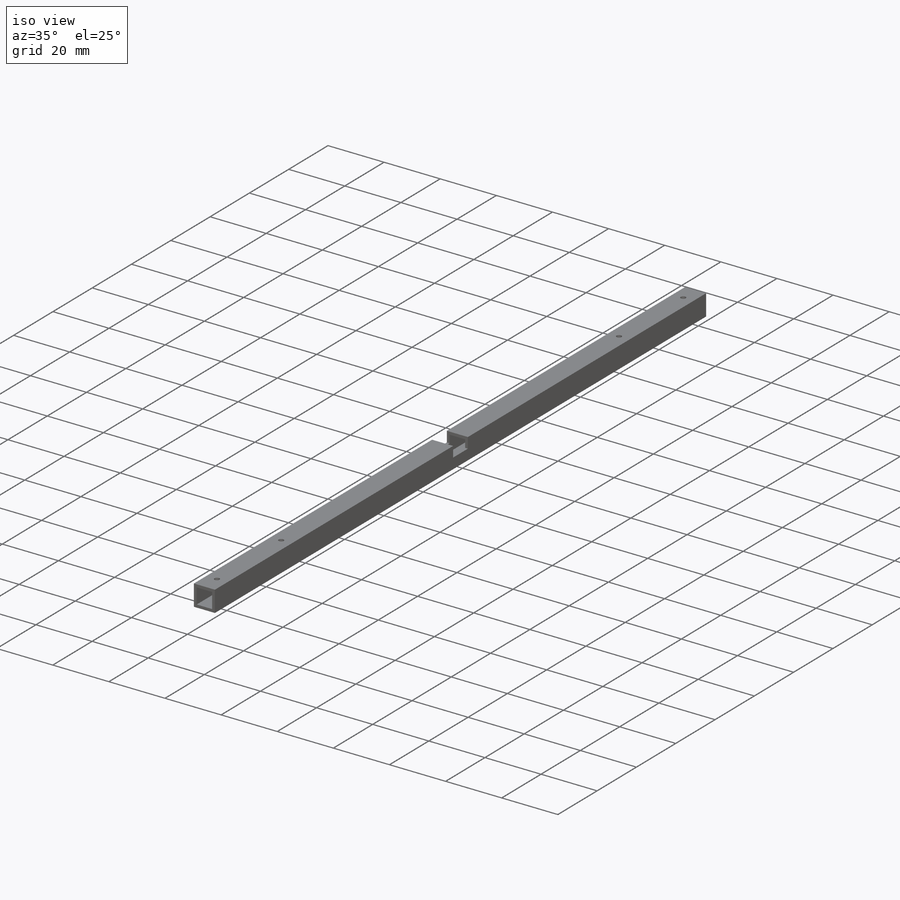
[diagram: iso view]
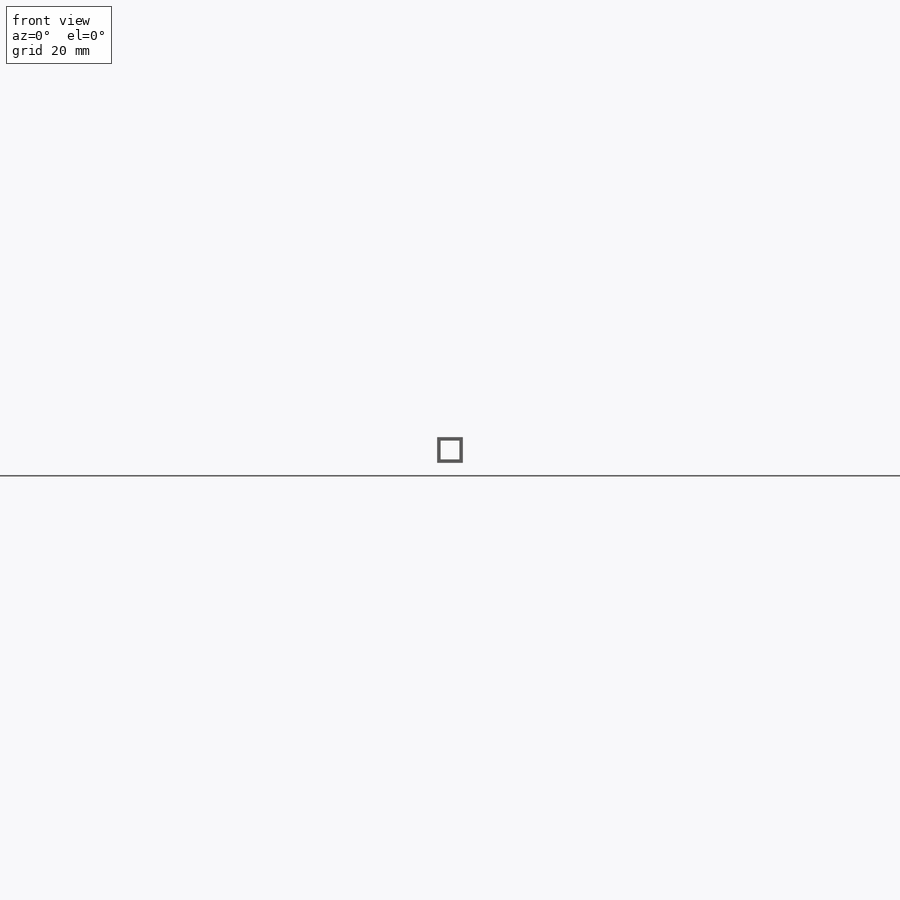
[diagram: front view]
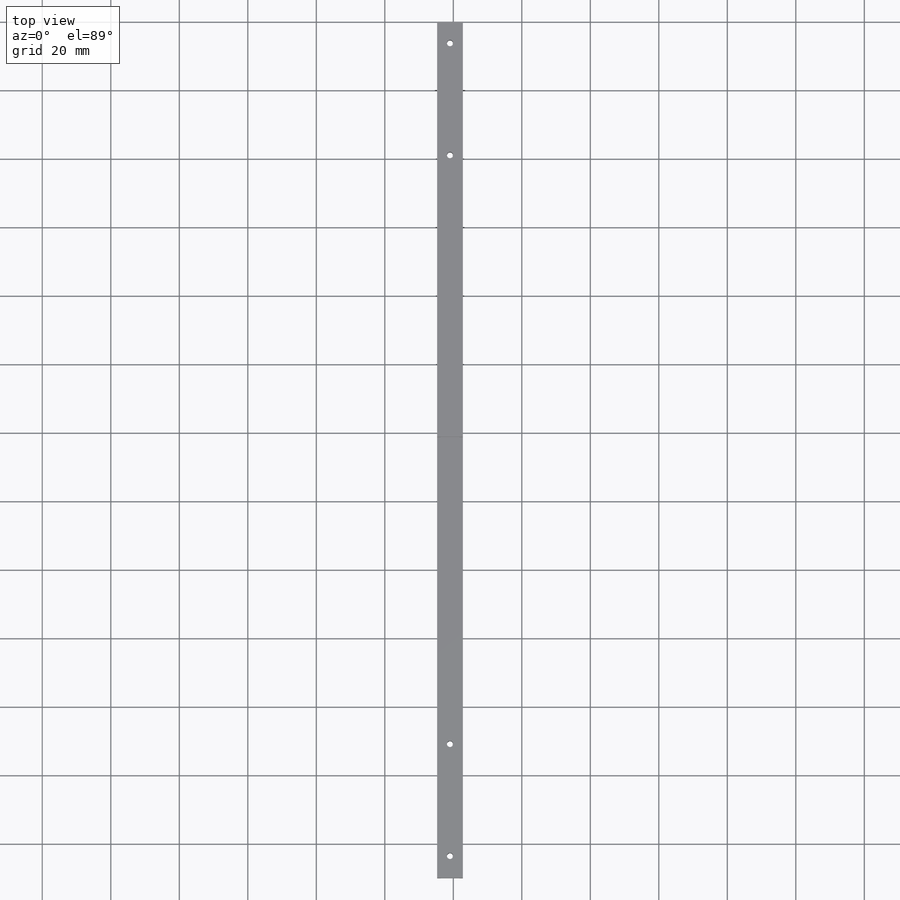
[diagram: top view]
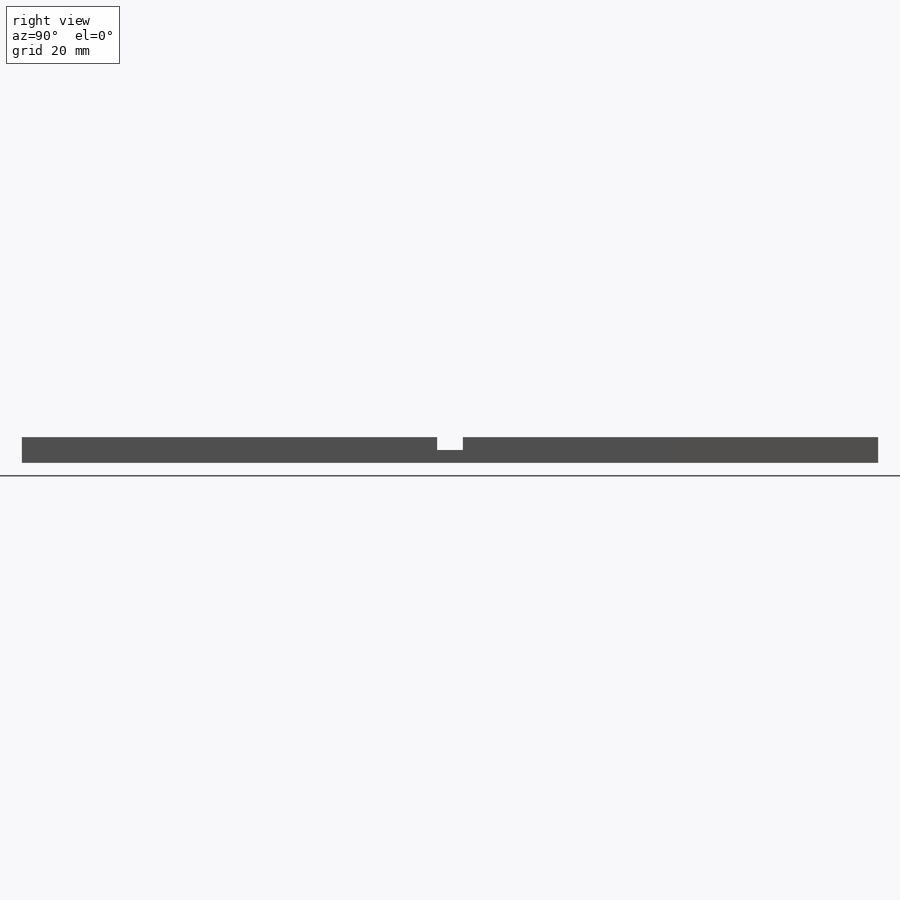
[diagram: right view]
SOLIDWORKS PART (.sldprt)
format: sldprt  version: not decoded by parser v0  size: 619,008 bytes
history: native  units: mm
features: sketch x9, thread x4, plane x3, cut_extrude x2, hole x2, material x1, extrude x1 (+12 scaffold rows collapsed)
feature tree (34):
  scaffold x12  (default folders/planes/origin — collapsed)
  material  "3.0526 (EN-AW 3005)"
  plane  "Plan de face"
  plane  "Plan de dessus"
  plane  "Plan de droite"
  sketch  "Esquisse3"  dims[D1=7.5mm]
  extrude  "Boss.-Extru.3"  Depth=250mm
  sketch  "Esquisse4"  dims[D1=5.5mm D2=5.5mm D3=1.0mm D4=1.0mm]
  cut_extrude  "Enlèv. mat.-Extru.3"  Depth=0mm ModelUUID=0mm UUID=0mm
  sketch  "Esquisse6"  dims[D1=7.5mm D2=121.25mm D3=7.5mm]
  cut_extrude  "Enlèv. mat.-Extru.4"  Depth=3.75mm
  hole  "Trou taraudé #2-561"  Diameter=1.778mm Depth=7.5mm
  sketch  "Esquisse12"
  sketch  "Esquisse11"  dims[hole-wizard template sketch: 59 standard entries collapsed; hole parameters kept: c18.Diamètre du trou pour taraudage jusqu'au prochain=1.778mm c18.Profondeur du trou pour taraudage jusqu'au prochain=7.5mm]
  thread  "Filetage de perçage3"  Diameter=2.1844mm  [1 undecoded]
  thread  "Filetage de perçage4"  Diameter=2.1844mm  [1 undecoded]
  hole  "Trou taraudé #2-562"  Diameter=1.778mm Depth=7.5mm
  sketch  "Esquisse14"
  sketch  "Esquisse13"  dims[hole-wizard template sketch: 59 standard entries collapsed; hole parameters kept: c18.Diamètre du trou pour taraudage jusqu'au prochain=1.778mm c18.Profondeur du trou pour taraudage jusqu'au prochain=7.5mm]
  thread  "Filetage de perçage5"  Diameter=2.1844mm  [1 undecoded]
  thread  "Filetage de perçage6"  Diameter=2.1844mm  [1 undecoded]
  sketch  "Esquisse15"  dims[c1.D1=3.0mm c1.D2=3.0mm c1.D3=3.0mm c1.D5=3.0mm c1.D6=3.0mm c1.D7=3.0mm c2.D3=4.0mm c2.D4=4.0mm c2.D8=4.0mm c2.D9=~5.235368mm c3.D9=90.0deg c4.D9=4.0mm c4.D10=4.0mm c4.D11=4.0mm c4.D12=4.0mm c4.D13=4.0mm c4.D1=3.0mm]
  sketch  "Esquisse16"  dims[c1.D1=3.0mm c1.D2=3.0mm c1.D3=3.0mm c1.D5=3.0mm c1.D6=3.0mm c1.D7=3.0mm c2.D3=4.0mm c2.D4=4.0mm c2.D8=4.0mm c2.D9=~5.235368mm c3.D9=90.0deg c4.D9=4.0mm c4.D10=4.0mm c4.D11=4.0mm c4.D12=4.0mm c4.D13=4.0mm c4.D1=3.0mm]
decode coverage: 16 of 18 modeling features carry decoded parameters
note: ~ marks probable driven/reference dimensions
note: 4 parameter values undecoded
note: suppression state not decoded; provenance and decode notes live in map.json
